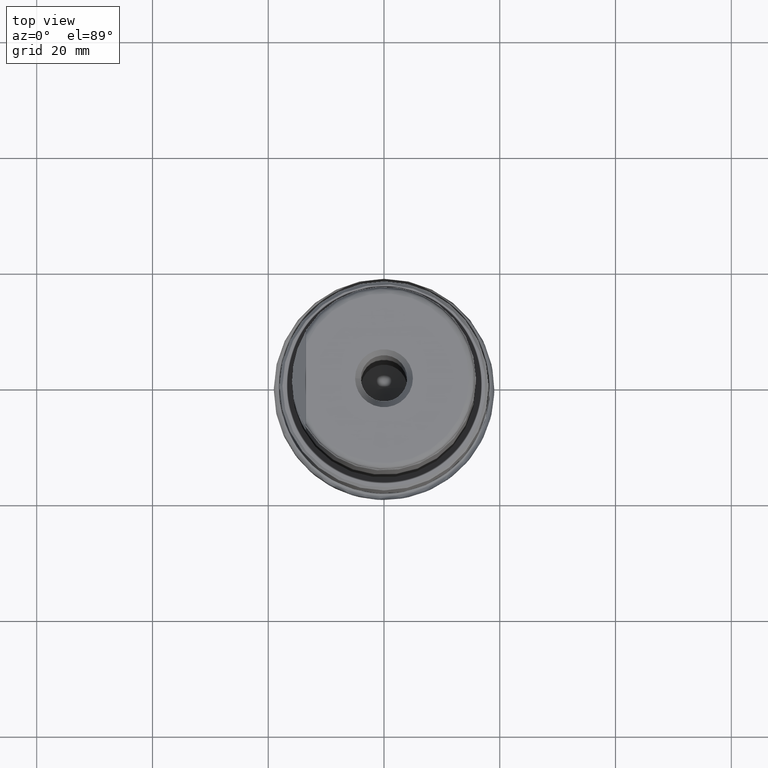
[diagram: clean part render]
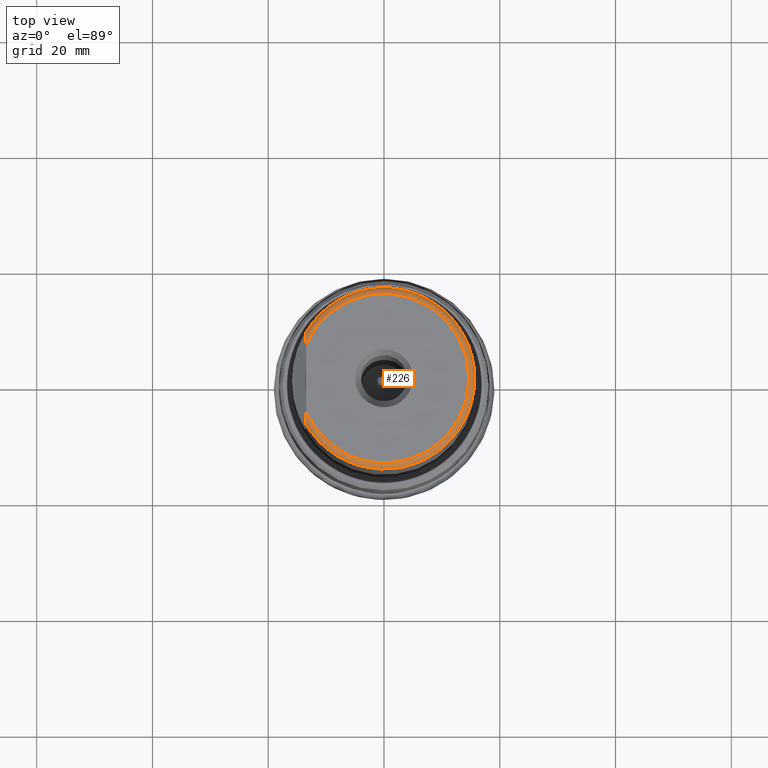
[diagram: same view with one face highlighted and labeled with its STEP entity id]
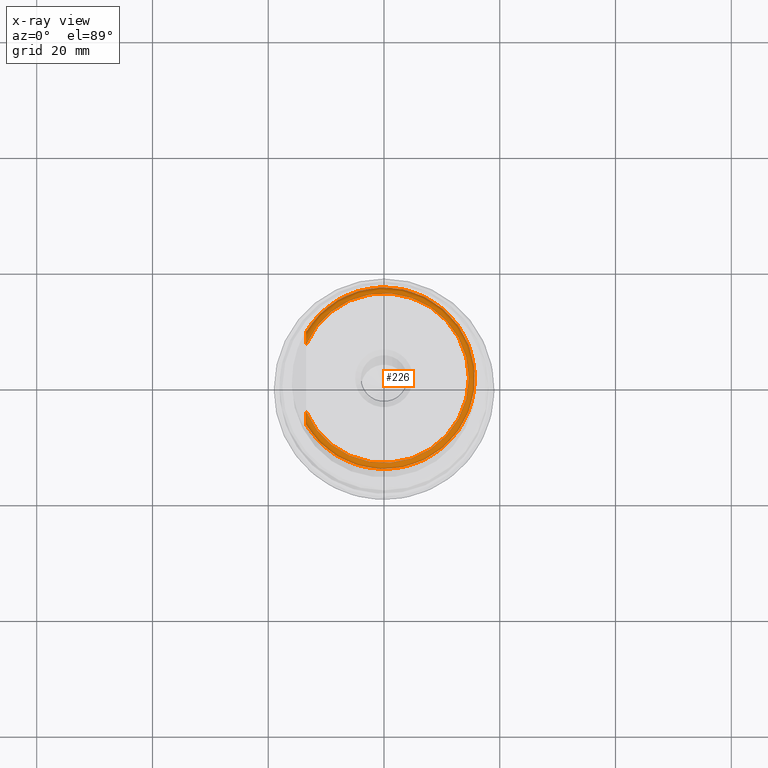
[diagram: x-ray of the same camera — body ghosted, the highlighted face saturated]
A machine part, top view. The second image highlights one B-rep face of the part: STEP entity #226.
The next image is the same camera in x-ray: the body ghosted, the highlighted face saturated — about 0% of this face is hidden behind the body in this view.
In plain terms, the highlighted toroidal blend (fillet) surface has major radius 14.675 mm and minor (blend) radius 1 mm.
Its self-contained STEP definition (entity closure, byte-faithful):
#202=TOROIDAL_SURFACE('',#1041,14.675,1.);
#213=FACE_OUTER_BOUND('',#443,.T.);
#226=ADVANCED_FACE('',(#213),#202,.T.);
#443=EDGE_LOOP('',(#583,#584,#585,#586));
#583=ORIENTED_EDGE('',*,*,#824,.F.);
#584=ORIENTED_EDGE('',*,*,#825,.T.);
#585=ORIENTED_EDGE('',*,*,#820,.F.);
#586=ORIENTED_EDGE('',*,*,#826,.T.);
#745=VERTEX_POINT('',#1764);
#746=VERTEX_POINT('',#1766);
#747=VERTEX_POINT('',#1779);
#748=VERTEX_POINT('',#1780);
#820=EDGE_CURVE('',#745,#746,#890,.T.);
#824=EDGE_CURVE('',#747,#748,#891,.T.);
#825=EDGE_CURVE('',#747,#746,#985,.T.);
#826=EDGE_CURVE('',#745,#748,#986,.T.);
#890=CIRCLE('',#1037,15.675);
#891=CIRCLE('',#1040,14.675);
#985=B_SPLINE_CURVE_WITH_KNOTS('',3,(#1781,#1782,#1783,#1784,#1785,#1786,
#1787,#1788),.UNSPECIFIED.,.F.,.F.,(4,2,2,4),(0.,0.500000000000002,0.75,
1.),.UNSPECIFIED.);
#986=B_SPLINE_CURVE_WITH_KNOTS('',3,(#1789,#1790,#1791,#1792,#1793,#1794,
#1795,#1796),.UNSPECIFIED.,.F.,.F.,(4,2,2,4),(0.,0.249999999999999,0.5,
1.),.UNSPECIFIED.);
#1037=AXIS2_PLACEMENT_3D('',#1765,#1131,#1132);
#1040=AXIS2_PLACEMENT_3D('',#1778,#1138,#1139);
#1041=AXIS2_PLACEMENT_3D('',#1797,#1140,#1141);
#1131=DIRECTION('',(-1.17145536458252E-15,0.,-1.));
#1132=DIRECTION('',(-1.,0.,8.85345314693106E-16));
#1138=DIRECTION('',(1.17145536458252E-15,0.,1.));
#1139=DIRECTION('',(-1.,0.,9.45675489459247E-16));
#1140=DIRECTION('',(-1.17145536458252E-15,0.,-1.));
#1141=DIRECTION('',(-1.,0.,8.85345314693106E-16));
#1764=CARTESIAN_POINT('',(-13.4873999999999,7.98721893026607,113.3));
#1765=CARTESIAN_POINT('',(1.327258928072E-13,0.,113.3));
#1766=CARTESIAN_POINT('',(-13.4873999999999,-7.98721893026606,113.3));
#1778=CARTESIAN_POINT('',(1.33897348171782E-13,0.,114.3));
#1779=CARTESIAN_POINT('',(-13.4873999999999,-5.78322282468869,114.3));
#1780=CARTESIAN_POINT('',(-13.4873999999999,5.78322282468872,114.3));
#1781=CARTESIAN_POINT('',(-13.4873999999999,-5.78322282468869,114.3));
#1782=CARTESIAN_POINT('',(-13.4873999999999,-6.21539935382885,114.3));
#1783=CARTESIAN_POINT('',(-13.4873999999999,-6.66033392319205,114.260471176885));
#1784=CARTESIAN_POINT('',(-13.4873999999999,-7.284466734816,114.066460345474));
#1785=CARTESIAN_POINT('',(-13.4873999999999,-7.48411378488175,113.981558432478));
#1786=CARTESIAN_POINT('',(-13.4873999999999,-7.83818963749524,113.714712701713));
#1787=CARTESIAN_POINT('',(-13.4873999999999,-7.98721893026606,113.516284063495));
#1788=CARTESIAN_POINT('',(-13.4873999999999,-7.98721893026606,113.3));
#1789=CARTESIAN_POINT('',(-13.4873999999999,7.98721893026608,113.3));
#1790=CARTESIAN_POINT('',(-13.4873999999999,7.98721893026595,113.520937127672));
#1791=CARTESIAN_POINT('',(-13.4873999999999,7.83769122277275,113.714895925195));
#1792=CARTESIAN_POINT('',(-13.4873999999999,7.48601411077844,113.980317907556));
#1793=CARTESIAN_POINT('',(-13.4873999999999,7.28189737654,114.067498991133));
#1794=CARTESIAN_POINT('',(-13.4873999999999,6.65697861353613,114.261029312967));
#1795=CARTESIAN_POINT('',(-13.4873999999999,6.216608442675,114.3));
#1796=CARTESIAN_POINT('',(-13.4873999999999,5.78322282468872,114.3));
#1797=CARTESIAN_POINT('',(1.327258928072E-13,0.,113.3));